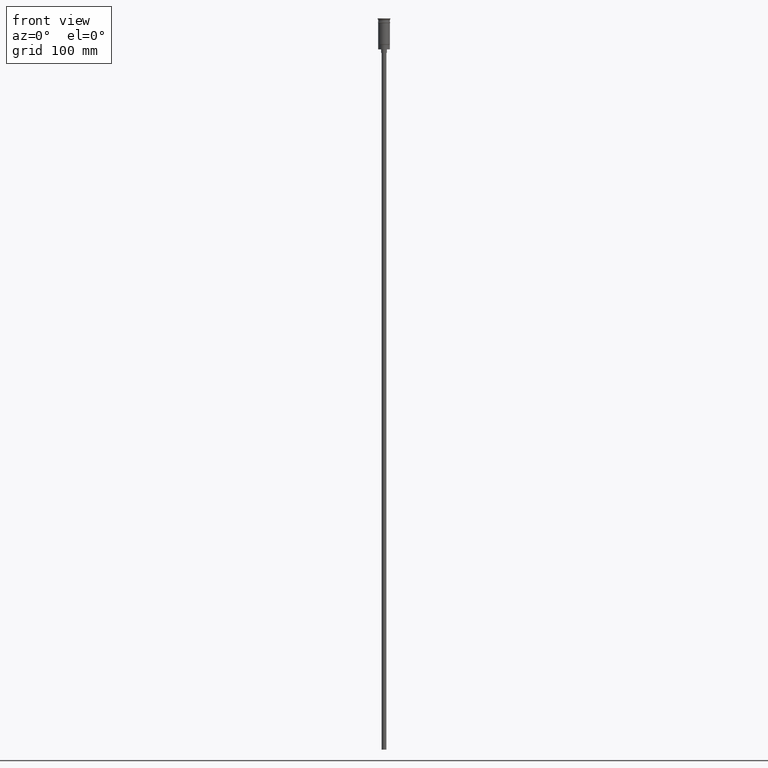
[diagram: clean part render]
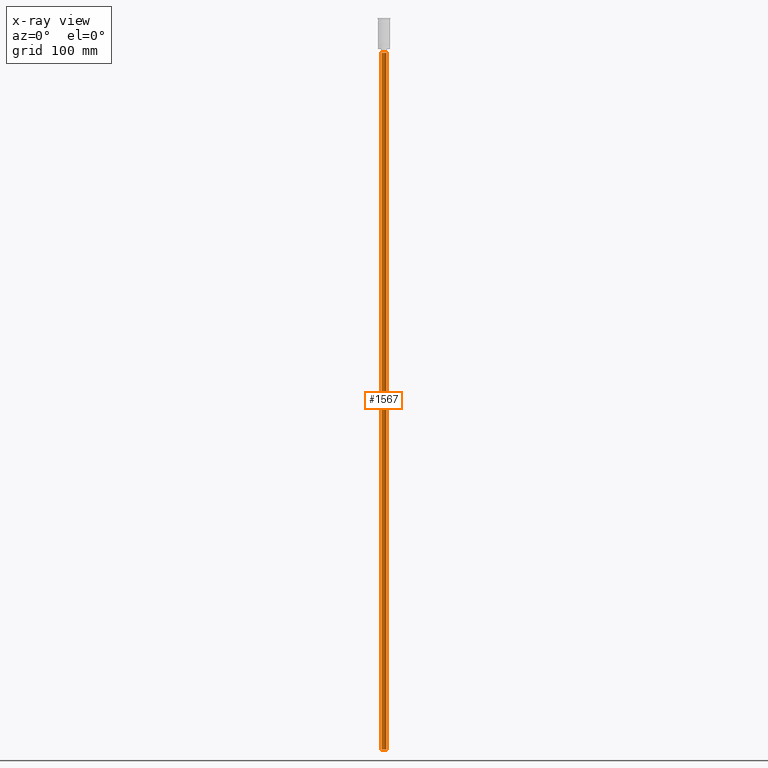
[diagram: x-ray — body ghosted, one internal face saturated and labeled with its STEP entity id]
A machine part, front view, then the same camera in x-ray: the body is ghosted and one INTERNAL B-rep face — a face not visible from any outside direction — is saturated and labeled: STEP entity #1567.
In plain terms, the highlighted cylindrical surface (edge-blend (fillet) strip) has radius 2 mm, axis along (-0, -0, 1).
Its self-contained STEP definition (entity closure, byte-faithful):
#24 = CARTESIAN_POINT ( 'NONE',  ( 2.000000000000000000, 0.000000000000000000, -626.5000000000000000 ) ) ;
#58 = DIRECTION ( 'NONE',  ( -1.000000000000000000, 0.000000000000000000, 0.000000000000000000 ) ) ;
#59 = CARTESIAN_POINT ( 'NONE',  ( 0.000000000000000000, 0.000000000000000000, -626.5000000000000000 ) ) ;
#63 = EDGE_LOOP ( 'NONE', ( #1494, #283, #1190, #320 ) ) ;
#96 = DIRECTION ( 'NONE',  ( -1.000000000000000000, 0.000000000000000000, 0.000000000000000000 ) ) ;
#153 = LINE ( 'NONE', #24, #592 ) ;
#157 = VECTOR ( 'NONE', #1250, 1000.000000000000000 ) ;
#280 = CARTESIAN_POINT ( 'NONE',  ( 2.000000000000000000, 0.000000000000000000, -29.50000000000000000 ) ) ;
#283 = ORIENTED_EDGE ( 'NONE', *, *, #903, .T. ) ;
#320 = ORIENTED_EDGE ( 'NONE', *, *, #761, .F. ) ;
#391 = LINE ( 'NONE', #760, #157 ) ;
#423 = CARTESIAN_POINT ( 'NONE',  ( -2.000000000000000000, 2.449293598294706414E-16, -29.50000000000000000 ) ) ;
#428 = DIRECTION ( 'NONE',  ( -0.000000000000000000, -0.000000000000000000, 1.000000000000000000 ) ) ;
#509 = DIRECTION ( 'NONE',  ( -0.000000000000000000, -0.000000000000000000, 1.000000000000000000 ) ) ;
#524 = EDGE_CURVE ( 'NONE', #606, #966, #771, .T. ) ;
#592 = VECTOR ( 'NONE', #509, 1000.000000000000000 ) ;
#606 = VERTEX_POINT ( 'NONE', #423 ) ;
#672 = DIRECTION ( 'NONE',  ( 0.000000000000000000, 0.000000000000000000, -1.000000000000000000 ) ) ;
#760 = CARTESIAN_POINT ( 'NONE',  ( -2.000000000000000000, 2.449293598294706414E-16, -626.5000000000000000 ) ) ;
#761 = EDGE_CURVE ( 'NONE', #962, #966, #153, .T. ) ;
#766 = CARTESIAN_POINT ( 'NONE',  ( 2.000000000000000000, 0.000000000000000000, -626.5000000000000000 ) ) ;
#771 = CIRCLE ( 'NONE', #832, 2.000000000000000000 ) ;
#777 = AXIS2_PLACEMENT_3D ( 'NONE', #1447, #1579, #96 ) ;
#832 = AXIS2_PLACEMENT_3D ( 'NONE', #1501, #672, #58 ) ;
#900 = CYLINDRICAL_SURFACE ( 'NONE', #1440, 2.000000000000000000 ) ;
#903 = EDGE_CURVE ( 'NONE', #1306, #606, #391, .T. ) ;
#926 = CIRCLE ( 'NONE', #777, 2.000000000000000000 ) ;
#962 = VERTEX_POINT ( 'NONE', #766 ) ;
#966 = VERTEX_POINT ( 'NONE', #280 ) ;
#1190 = ORIENTED_EDGE ( 'NONE', *, *, #524, .T. ) ;
#1201 = EDGE_CURVE ( 'NONE', #1306, #962, #926, .T. ) ;
#1250 = DIRECTION ( 'NONE',  ( -0.000000000000000000, -0.000000000000000000, 1.000000000000000000 ) ) ;
#1306 = VERTEX_POINT ( 'NONE', #1496 ) ;
#1394 = DIRECTION ( 'NONE',  ( 1.000000000000000000, 0.000000000000000000, 0.000000000000000000 ) ) ;
#1402 = FACE_OUTER_BOUND ( 'NONE', #63, .T. ) ;
#1440 = AXIS2_PLACEMENT_3D ( 'NONE', #59, #428, #1394 ) ;
#1447 = CARTESIAN_POINT ( 'NONE',  ( 0.000000000000000000, 0.000000000000000000, -626.5000000000000000 ) ) ;
#1494 = ORIENTED_EDGE ( 'NONE', *, *, #1201, .F. ) ;
#1496 = CARTESIAN_POINT ( 'NONE',  ( -2.000000000000000000, 2.449293598294706414E-16, -626.5000000000000000 ) ) ;
#1501 = CARTESIAN_POINT ( 'NONE',  ( 0.000000000000000000, 0.000000000000000000, -29.50000000000000000 ) ) ;
#1567 = ADVANCED_FACE ( 'NONE', ( #1402 ), #900, .T. ) ;
#1579 = DIRECTION ( 'NONE',  ( 0.000000000000000000, 0.000000000000000000, -1.000000000000000000 ) ) ;